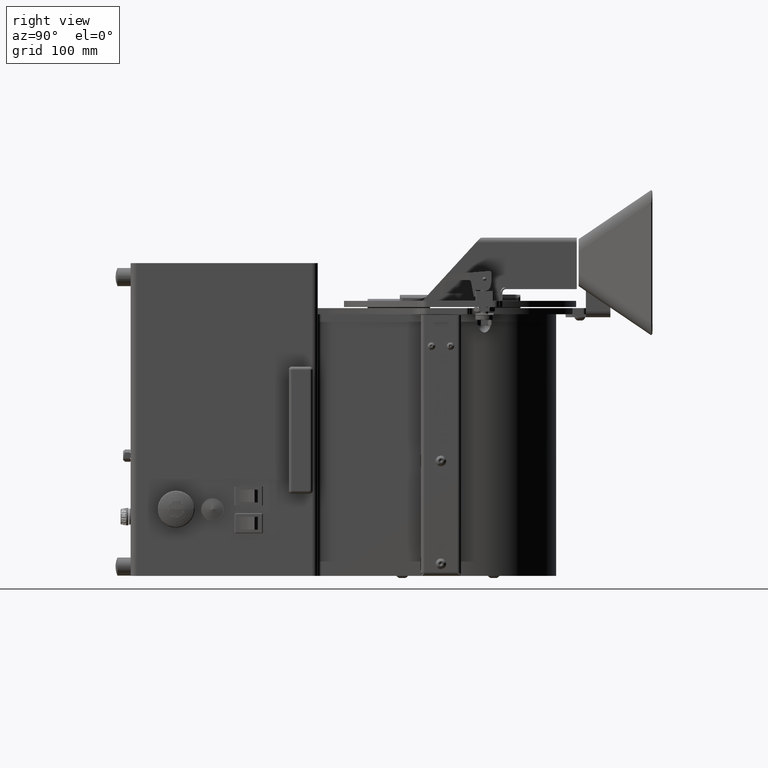
[diagram: clean part render]
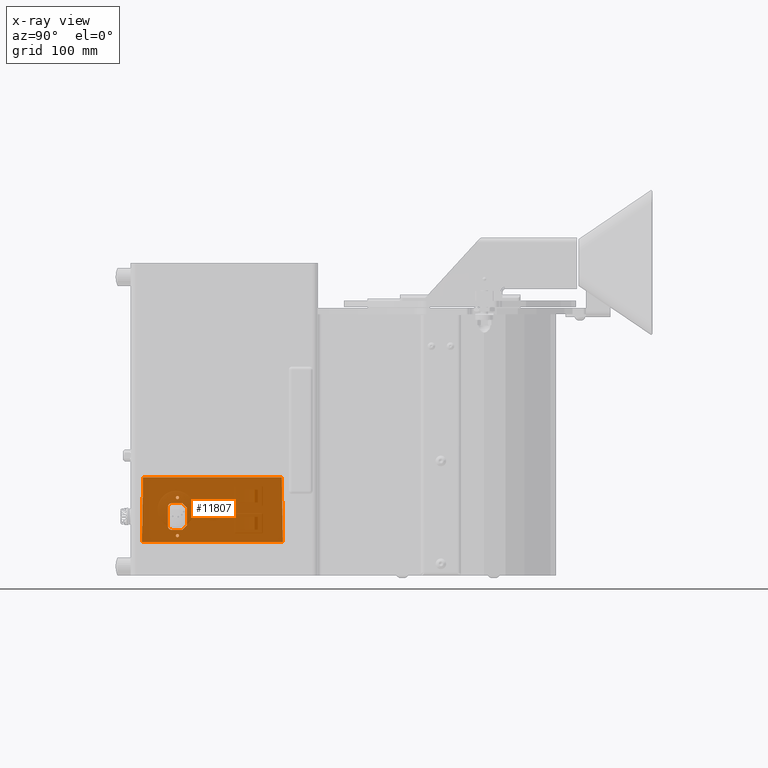
[diagram: x-ray — body ghosted, one internal face saturated and labeled with its STEP entity id]
A machine part, right view, then the same camera in x-ray: the body is ghosted and one INTERNAL B-rep face — a face not visible from any outside direction — is saturated and labeled: STEP entity #11807.
In plain terms, the highlighted planar face has unit normal (-0.9998, 0, 0.0175).
Its self-contained STEP definition (entity closure, byte-faithful):
#877 = CARTESIAN_POINT ( 'NONE',  ( -4.611257097806062077, -5.523449606299204007, 1.897642493253375751 ) ) ;
#1375 = DIRECTION ( 'NONE',  ( -0.01745240643729011401, 1.564186519071816366E-16, -0.9998476951563911586 ) ) ;
#1780 = CARTESIAN_POINT ( 'NONE',  ( -4.620012173076617934, -7.188128297800522759, 1.396064566929133388 ) ) ;
#1835 = VECTOR ( 'NONE', #37701, 39.37007874015748143 ) ;
#1840 = VECTOR ( 'NONE', #1375, 39.37007874015748854 ) ;
#2003 = AXIS2_PLACEMENT_3D ( 'NONE', #70455, #52792, #16507 ) ;
#2158 = AXIS2_PLACEMENT_3D ( 'NONE', #36829, #18128, #61229 ) ;
#4117 = DIRECTION ( 'NONE',  ( -0.9998476951563911586, 1.968249576659622200E-15, 0.01745240643729040891 ) ) ;
#4188 = EDGE_CURVE ( 'NONE', #40836, #74259, #26017, .T. ) ;
#4425 = CARTESIAN_POINT ( 'NONE',  ( -4.616547787946500669, -5.720299999999991947, 1.594539058107539597 ) ) ;
#6051 = DIRECTION ( 'NONE',  ( 2.081668171172169302E-15, 1.000000000000000000, 1.201068257676395341E-16 ) ) ;
#7043 = VECTOR ( 'NONE', #39095, 39.37007874015748854 ) ;
#7163 = CARTESIAN_POINT ( 'NONE',  ( -4.595453737646310266, -5.326599212598416955, 2.803016390442234052 ) ) ;
#7723 = EDGE_CURVE ( 'NONE', #29200, #18240, #73543, .T. ) ;
#8499 = CIRCLE ( 'NONE', #39054, 0.1574803149606298358 ) ;
#10136 = EDGE_LOOP ( 'NONE', ( #15832, #38361, #64380, #38456 ) ) ;
#10902 = CIRCLE ( 'NONE', #2003, 0.06692913385826872175 ) ;
#11807 = ADVANCED_FACE ( 'NONE', ( #34518, #29335, #41238, #59276 ), #23337, .T. ) ;
#12138 = CARTESIAN_POINT ( 'NONE',  ( -4.620012173076594841, -1.362659103774271241, 1.396064566929134054 ) ) ;
#13210 = CARTESIAN_POINT ( 'NONE',  ( -4.611257097806062077, -5.956520472440936409, 1.897642493253375751 ) ) ;
#13298 = ORIENTED_EDGE ( 'NONE', *, *, #7723, .F. ) ;
#15427 = EDGE_LOOP ( 'NONE', ( #34156, #39688 ) ) ;
#15628 = EDGE_CURVE ( 'NONE', #22507, #37061, #71844, .T. ) ;
#15832 = ORIENTED_EDGE ( 'NONE', *, *, #34134, .F. ) ;
#16507 = DIRECTION ( 'NONE',  ( 0.01745240643728665844, 0.000000000000000000, 0.9998476951563911586 ) ) ;
#16722 = ORIENTED_EDGE ( 'NONE', *, *, #35114, .F. ) ;
#18128 = DIRECTION ( 'NONE',  ( -0.9998476951563911586, 1.968249576659622200E-15, 0.01745240643729040891 ) ) ;
#18240 = VERTEX_POINT ( 'NONE', #51004 ) ;
#18797 = DIRECTION ( 'NONE',  ( -2.081668171172169302E-15, -1.000000000000000000, -1.201068257676395341E-16 ) ) ;
#20055 = EDGE_CURVE ( 'NONE', #57051, #34760, #25314, .T. ) ;
#20074 = VECTOR ( 'NONE', #34556, 39.37007874015748143 ) ;
#20113 = EDGE_CURVE ( 'NONE', #74259, #60813, #66754, .T. ) ;
#20440 = DIRECTION ( 'NONE',  ( 0.01745240643729121729, 0.000000000000000000, 0.9998476951563911586 ) ) ;
#22507 = VERTEX_POINT ( 'NONE', #69990 ) ;
#23337 = PLANE ( 'NONE',  #25322 ) ;
#23789 = EDGE_LOOP ( 'NONE', ( #68845, #43427, #71682, #13298, #39377, #46687, #62990, #67026 ) ) ;
#24418 = DIRECTION ( 'NONE',  ( -0.9998476951563911586, 1.968249576659622200E-15, 0.01745240643729040891 ) ) ;
#25314 = CIRCLE ( 'NONE', #69941, 0.06692913385826980421 ) ;
#25322 = AXIS2_PLACEMENT_3D ( 'NONE', #28554, #52840, #77307 ) ;
#26017 = LINE ( 'NONE', #877, #28160 ) ;
#26363 = EDGE_CURVE ( 'NONE', #58012, #40836, #43193, .T. ) ;
#26431 = VERTEX_POINT ( 'NONE', #30512 ) ;
#26994 = LINE ( 'NONE', #57268, #1835 ) ;
#27215 = CARTESIAN_POINT ( 'NONE',  ( -4.589063683320846465, -5.720299999999991947, 3.169102357566421890 ) ) ;
#28160 = VECTOR ( 'NONE', #74756, 39.37007874015748854 ) ;
#28444 = DIRECTION ( 'NONE',  ( 0.01745240643728637742, 0.000000000000000000, 0.9998476951563911586 ) ) ;
#28482 = AXIS2_PLACEMENT_3D ( 'NONE', #39184, #45942, #51152 ) ;
#28554 = CARTESIAN_POINT ( 'NONE',  ( -4.620699380357257802, -7.424999999999996270, 1.356694488188975978 ) ) ;
#28733 = VECTOR ( 'NONE', #6051, 39.37007874015748143 ) ;
#29200 = VERTEX_POINT ( 'NONE', #72427 ) ;
#29335 = FACE_BOUND ( 'NONE', #62205, .T. ) ;
#30478 = VERTEX_POINT ( 'NONE', #77535 ) ;
#30512 = CARTESIAN_POINT ( 'NONE',  ( -4.573270084572410354, -7.141386209296338272, 4.073917023875483601 ) ) ;
#32486 = VERTEX_POINT ( 'NONE', #76500 ) ;
#32967 = CARTESIAN_POINT ( 'NONE',  ( -4.573270084572408578, -5.850196850393697190, 4.073917023875484489 ) ) ;
#33349 = LINE ( 'NONE', #32967, #57972 ) ;
#33518 = VERTEX_POINT ( 'NONE', #12138 ) ;
#34134 = EDGE_CURVE ( 'NONE', #32486, #26431, #33349, .T. ) ;
#34156 = ORIENTED_EDGE ( 'NONE', *, *, #15628, .F. ) ;
#34518 = FACE_BOUND ( 'NONE', #15427, .T. ) ;
#34556 = DIRECTION ( 'NONE',  ( -0.01234071493982946861, 0.7071067811865475727, -0.7069990853988241675 ) ) ;
#34760 = VERTEX_POINT ( 'NONE', #27215 ) ;
#35114 = EDGE_CURVE ( 'NONE', #34760, #57051, #37789, .T. ) ;
#36668 = DIRECTION ( 'NONE',  ( -1.970645868709653254E-15, -1.000000000000000000, -1.201068257676403230E-16 ) ) ;
#36829 = CARTESIAN_POINT ( 'NONE',  ( -4.587895608874256403, -5.720299999999991947, 3.236021297793426843 ) ) ;
#37061 = VERTEX_POINT ( 'NONE', #4425 ) ;
#37701 = DIRECTION ( 'NONE',  ( -1.970679684603122465E-15, -1.000000000000000000, -1.220441370069876231E-16 ) ) ;
#37789 = CIRCLE ( 'NONE', #2158, 0.06692913385826980421 ) ;
#38361 = ORIENTED_EDGE ( 'NONE', *, *, #47321, .F. ) ;
#38456 = ORIENTED_EDGE ( 'NONE', *, *, #63605, .T. ) ;
#38968 = EDGE_CURVE ( 'NONE', #37061, #22507, #10902, .T. ) ;
#39054 = AXIS2_PLACEMENT_3D ( 'NONE', #56364, #39552, #20440 ) ;
#39072 = CIRCLE ( 'NONE', #74922, 0.1574803149606295583 ) ;
#39095 = DIRECTION ( 'NONE',  ( 0.01744974916068955939, -0.01744974916068284601, 0.9996954598818872384 ) ) ;
#39184 = CARTESIAN_POINT ( 'NONE',  ( -4.615379713499910608, -5.720299999999991947, 1.661457998334543218 ) ) ;
#39377 = ORIENTED_EDGE ( 'NONE', *, *, #40910, .F. ) ;
#39402 = DIRECTION ( 'NONE',  ( 0.01745240643729062749, -1.564186519071826966E-16, 0.9998476951563911586 ) ) ;
#39552 = DIRECTION ( 'NONE',  ( -0.9998476951563911586, 1.968249576659622200E-15, 0.01745240643729040891 ) ) ;
#39688 = ORIENTED_EDGE ( 'NONE', *, *, #38968, .F. ) ;
#39706 = VERTEX_POINT ( 'NONE', #60435 ) ;
#40836 = VERTEX_POINT ( 'NONE', #62866 ) ;
#40910 = EDGE_CURVE ( 'NONE', #30478, #29200, #39072, .T. ) ;
#41238 = FACE_BOUND ( 'NONE', #23789, .T. ) ;
#43193 = LINE ( 'NONE', #49962, #1840 ) ;
#43427 = ORIENTED_EDGE ( 'NONE', *, *, #26363, .F. ) ;
#43994 = LINE ( 'NONE', #1780, #44587 ) ;
#44360 = VECTOR ( 'NONE', #18797, 39.37007874015748143 ) ;
#44587 = VECTOR ( 'NONE', #67261, 39.37007874015748854 ) ;
#45847 = LINE ( 'NONE', #51434, #7043 ) ;
#45942 = DIRECTION ( 'NONE',  ( -0.9998476951563911586, 1.968249576659622200E-15, 0.01745240643729040891 ) ) ;
#46687 = ORIENTED_EDGE ( 'NONE', *, *, #53270, .F. ) ;
#46780 = EDGE_CURVE ( 'NONE', #33518, #39706, #26994, .T. ) ;
#47321 = EDGE_CURVE ( 'NONE', #33518, #32486, #45847, .T. ) ;
#48096 = VERTEX_POINT ( 'NONE', #73564 ) ;
#48670 = DIRECTION ( 'NONE',  ( 0.01745240643729124852, 0.000000000000000000, 0.9998476951563911586 ) ) ;
#48767 = ORIENTED_EDGE ( 'NONE', *, *, #20055, .F. ) ;
#49962 = CARTESIAN_POINT ( 'NONE',  ( -4.607821584727854969, -5.326599212598416955, 2.094462905685736231 ) ) ;
#51004 = CARTESIAN_POINT ( 'NONE',  ( -4.592018224568104046, -5.523449606299204007, 2.999836802874594532 ) ) ;
#51152 = DIRECTION ( 'NONE',  ( 0.01745240643728665844, 0.000000000000000000, 0.9998476951563911586 ) ) ;
#51434 = CARTESIAN_POINT ( 'NONE',  ( -4.619812261639030027, -1.362859015211832059, 1.407517485516559086 ) ) ;
#52483 = LINE ( 'NONE', #76181, #20074 ) ;
#52792 = DIRECTION ( 'NONE',  ( -0.9998476951563911586, 1.968249576659622200E-15, 0.01745240643729040891 ) ) ;
#52840 = DIRECTION ( 'NONE',  ( -0.9998476951563911586, 1.968249576659622200E-15, 0.01745240643729040891 ) ) ;
#52869 = CARTESIAN_POINT ( 'NONE',  ( -4.611257097806061189, -5.523449606299204007, 1.897642493253375751 ) ) ;
#53270 = EDGE_CURVE ( 'NONE', #48096, #30478, #63002, .T. ) ;
#56364 = CARTESIAN_POINT ( 'NONE',  ( -4.608508687343497279, -5.956520472440937297, 2.055098823199264402 ) ) ;
#57051 = VERTEX_POINT ( 'NONE', #63933 ) ;
#57268 = CARTESIAN_POINT ( 'NONE',  ( -4.620012173076618822, -7.424999999999996270, 1.396064566929133388 ) ) ;
#57397 = CARTESIAN_POINT ( 'NONE',  ( -4.608508687343497279, -6.114000787401566939, 2.055098823199265290 ) ) ;
#57972 = VECTOR ( 'NONE', #36668, 39.37007874015748143 ) ;
#58012 = VERTEX_POINT ( 'NONE', #7163 ) ;
#59276 = FACE_OUTER_BOUND ( 'NONE', #10136, .T. ) ;
#60435 = CARTESIAN_POINT ( 'NONE',  ( -4.620012173076627704, -7.188128297800522759, 1.396064566929133388 ) ) ;
#60722 = CARTESIAN_POINT ( 'NONE',  ( -4.592018224568104934, -5.956520472440936409, 2.999836802874594532 ) ) ;
#60813 = VERTEX_POINT ( 'NONE', #70954 ) ;
#61229 = DIRECTION ( 'NONE',  ( 0.01745240643728637742, 0.000000000000000000, 0.9998476951563911586 ) ) ;
#62205 = EDGE_LOOP ( 'NONE', ( #48767, #16722 ) ) ;
#62866 = CARTESIAN_POINT ( 'NONE',  ( -4.607821584727854969, -5.326599212598416955, 2.094462905685736231 ) ) ;
#62990 = ORIENTED_EDGE ( 'NONE', *, *, #70444, .F. ) ;
#63002 = LINE ( 'NONE', #57397, #69016 ) ;
#63605 = EDGE_CURVE ( 'NONE', #39706, #26431, #43994, .T. ) ;
#63933 = CARTESIAN_POINT ( 'NONE',  ( -4.586727534427666342, -5.720299999999991947, 3.302940238020431352 ) ) ;
#64380 = ORIENTED_EDGE ( 'NONE', *, *, #46780, .T. ) ;
#64782 = CARTESIAN_POINT ( 'NONE',  ( -4.587895608874256403, -5.720299999999991947, 3.236021297793426843 ) ) ;
#66754 = LINE ( 'NONE', #13210, #44360 ) ;
#67026 = ORIENTED_EDGE ( 'NONE', *, *, #20113, .F. ) ;
#67261 = DIRECTION ( 'NONE',  ( 0.01744974916068965654, 0.01744974916068225620, 0.9996954598818874604 ) ) ;
#68845 = ORIENTED_EDGE ( 'NONE', *, *, #4188, .F. ) ;
#69016 = VECTOR ( 'NONE', #39402, 39.37007874015748854 ) ;
#69941 = AXIS2_PLACEMENT_3D ( 'NONE', #64782, #4117, #28444 ) ;
#69990 = CARTESIAN_POINT ( 'NONE',  ( -4.614211639053320546, -5.720299999999991947, 1.728376938561546838 ) ) ;
#70444 = EDGE_CURVE ( 'NONE', #60813, #48096, #8499, .T. ) ;
#70455 = CARTESIAN_POINT ( 'NONE',  ( -4.615379713499910608, -5.720299999999991947, 1.661457998334543218 ) ) ;
#70954 = CARTESIAN_POINT ( 'NONE',  ( -4.611257097806062077, -5.956520472440936409, 1.897642493253375973 ) ) ;
#71682 = ORIENTED_EDGE ( 'NONE', *, *, #75121, .F. ) ;
#71844 = CIRCLE ( 'NONE', #28482, 0.06692913385826872175 ) ;
#72326 = CARTESIAN_POINT ( 'NONE',  ( -4.594766635030669732, -5.956520472440937297, 2.842380472928706325 ) ) ;
#72427 = CARTESIAN_POINT ( 'NONE',  ( -4.592018224568104934, -5.956520472440936409, 2.999836802874594532 ) ) ;
#73543 = LINE ( 'NONE', #60722, #28733 ) ;
#73564 = CARTESIAN_POINT ( 'NONE',  ( -4.608508687343497279, -6.114000787401566939, 2.055098823199265290 ) ) ;
#74259 = VERTEX_POINT ( 'NONE', #52869 ) ;
#74756 = DIRECTION ( 'NONE',  ( -0.01234071493983437615, -0.7071067811865472397, -0.7069990853988242785 ) ) ;
#74922 = AXIS2_PLACEMENT_3D ( 'NONE', #72326, #24418, #48670 ) ;
#75121 = EDGE_CURVE ( 'NONE', #18240, #58012, #52483, .T. ) ;
#76181 = CARTESIAN_POINT ( 'NONE',  ( -4.595453737646310266, -5.326599212598416955, 2.803016390442234052 ) ) ;
#76500 = CARTESIAN_POINT ( 'NONE',  ( -4.573270084572389926, -1.409401192278456616, 4.073917023875484489 ) ) ;
#77307 = DIRECTION ( 'NONE',  ( 0.01745240643729040891, -1.564186519071822775E-16, 0.9998476951563911586 ) ) ;
#77535 = CARTESIAN_POINT ( 'NONE',  ( -4.594766635030670621, -6.114000787401566939, 2.842380472928704993 ) ) ;